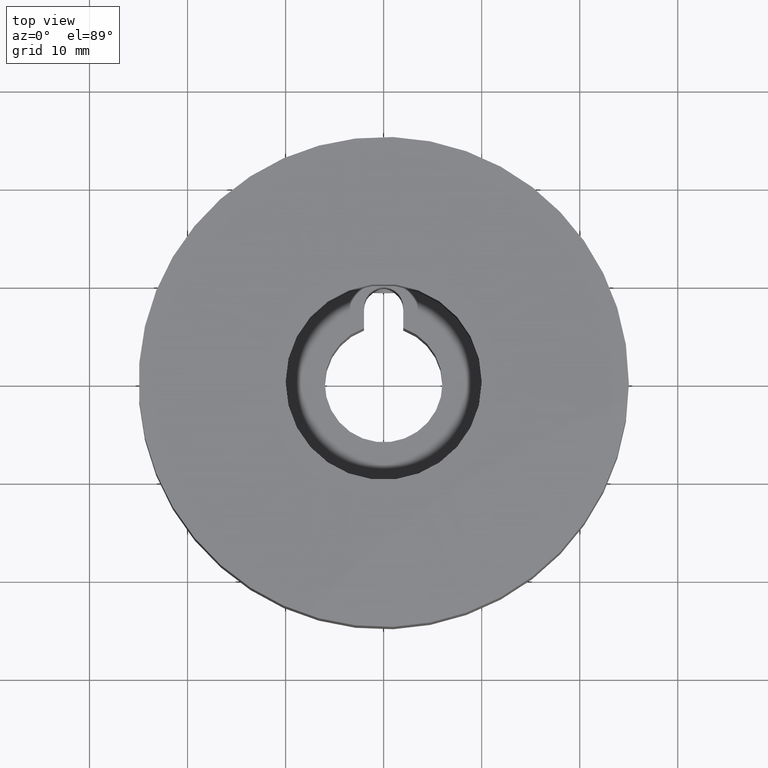
[diagram: clean part render]
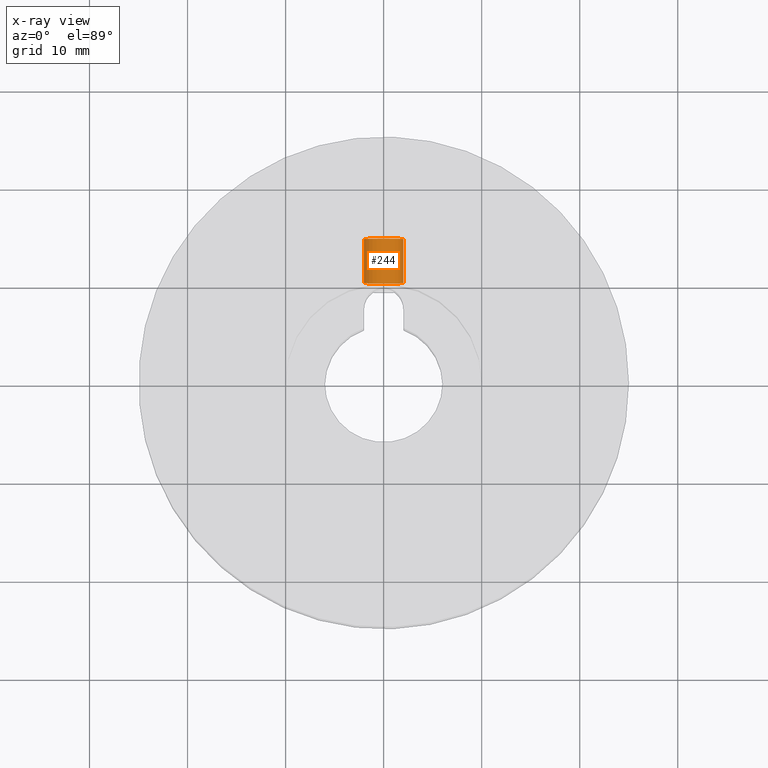
[diagram: x-ray — body ghosted, one internal face saturated and labeled with its STEP entity id]
A machine part, top view, then the same camera in x-ray: the body is ghosted and one INTERNAL B-rep face — a face not visible from any outside direction — is saturated and labeled: STEP entity #244.
In plain terms, the highlighted cylindrical surface (bore or boss wall) has radius 2 mm, axis along (0, 1, 0).
Its self-contained STEP definition (entity closure, byte-faithful):
#244 = ADVANCED_FACE( '', ( #313, #314 ), #315, .T. );
#313 = FACE_OUTER_BOUND( '', #385, .T. );
#314 = FACE_OUTER_BOUND( '', #386, .T. );
#315 = CYLINDRICAL_SURFACE( '', #387, 2.00000000000000 );
#385 = EDGE_LOOP( '', ( #553 ) );
#386 = EDGE_LOOP( '', ( #554 ) );
#387 = AXIS2_PLACEMENT_3D( '', #555, #556, #557 );
#553 = ORIENTED_EDGE( '', *, *, #587, .T. );
#554 = ORIENTED_EDGE( '', *, *, #608, .F. );
#555 = CARTESIAN_POINT( '', ( 2.25320904488525E-015, 9.39916186048723, -29.0000000000000 ) );
#556 = DIRECTION( '', ( 1.22464679914735E-016, 1.00000000000000, -0.000000000000000 ) );
#557 = DIRECTION( '', ( 1.00000000000000, -1.22464679914735E-016, 0.000000000000000 ) );
#587 = EDGE_CURVE( '', #653, #653, #654, .T. );
#608 = EDGE_CURVE( '', #687, #687, #688, .T. );
#653 = VERTEX_POINT( '', #847 );
#654 = CIRCLE( '', #848, 2.00000000000000 );
#687 = VERTEX_POINT( '', #923 );
#688 = CIRCLE( '', #924, 2.00000000000000 );
#847 = CARTESIAN_POINT( '', ( 2.00000000000000, 14.8991618604872, -29.0000000000000 ) );
#848 = AXIS2_PLACEMENT_3D( '', #975, #976, #977 );
#923 = CARTESIAN_POINT( '', ( 2.00000000000000, 10.3991618604872, -29.0000000000000 ) );
#924 = AXIS2_PLACEMENT_3D( '', #993, #994, #995 );
#975 = CARTESIAN_POINT( '', ( 2.92676478441629E-015, 14.8991618604872, -29.0000000000000 ) );
#976 = DIRECTION( '', ( -1.22464679914735E-016, -1.00000000000000, 0.000000000000000 ) );
#977 = DIRECTION( '', ( 1.00000000000000, -1.22464679914735E-016, 0.000000000000000 ) );
#993 = CARTESIAN_POINT( '', ( 2.37567372479998E-015, 10.3991618604872, -29.0000000000000 ) );
#994 = DIRECTION( '', ( -1.22464679914735E-016, -1.00000000000000, 0.000000000000000 ) );
#995 = DIRECTION( '', ( 1.00000000000000, -1.22464679914735E-016, 0.000000000000000 ) );